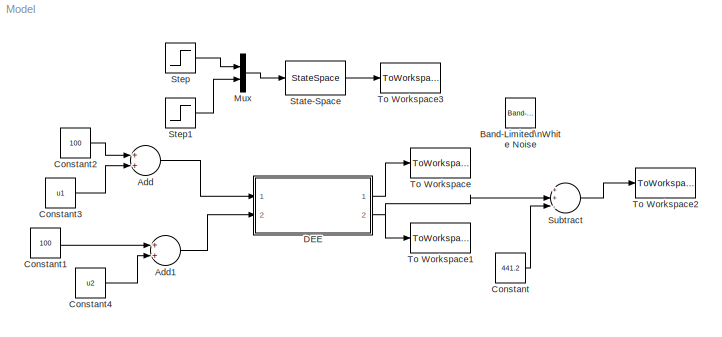
MODEL Model
KIND model
BLOCK [Sum] Add
  InputSameDT = off
  OutDataTypeStr = Inherit: Inherit via internal rule
  Ports = [2, 1]
  SID = 32
  SaturateOnIntegerOverflow = off
BLOCK [Sum] Add1
  InputSameDT = off
  OutDataTypeStr = Inherit: Inherit via internal rule
  Ports = [2, 1]
  SID = 33
  SaturateOnIntegerOverflow = off
BLOCK [Reference] Band-Limited\nWhite Noise  REF=simulink/Sources/Band-Limited\nWhite Noise
  Cov = [0.1]
  Ports = [0, 1]
  SID = 42
  SourceBlock = simulink/Sources/Band-Limited\nWhite Noise
  SourceType = Band-Limited White Noise.
  Ts = 0.1
  VectorParams1D = on
  seed = [23341]
BLOCK [Constant] Constant
  SID = 37
  Value = 441.2
BLOCK [Constant] Constant1
  SID = 38
  Value = 100
BLOCK [Constant] Constant2
  SID = 39
  Value = 100
BLOCK [Constant] Constant3
  SID = 40
  Value = u1
BLOCK [Constant] Constant4
  SID = 41
  Value = u2
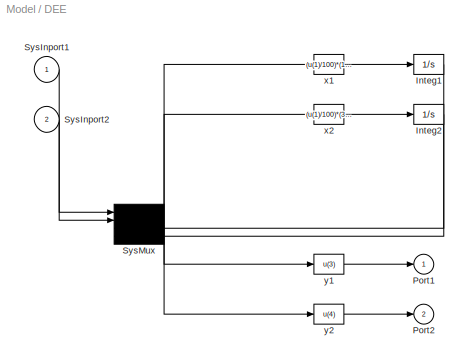
BLOCK [SubSystem] DEE
  OpenFcn = diffeqed
  Ports = [2, 2]
  RequestExecContextInheritance = off
  SID = 6
BLOCK [Integrator] DEE/Integ1
  InitialCondition = x01
  Ports = [1, 1]
  SID = 11
BLOCK [Integrator] DEE/Integ2
  InitialCondition = x02
  Ports = [1, 1]
  SID = 13
BLOCK [Outport] DEE/Port1
  IconDisplay = Port number
  SID = 15
BLOCK [Outport] DEE/Port2
  IconDisplay = Port number
  Port = 2
  SID = 24
BLOCK [Inport] DEE/SysInport1
  IconDisplay = Port number
  SID = 8
BLOCK [Inport] DEE/SysInport2
  IconDisplay = Port number
  Port = 2
  SID = 9
BLOCK [Mux] DEE/SysMux
  Ports = [4, 1]
  SID = 7
BLOCK [Fcn] DEE/x1
  Expr = (u(1)/100)*(1-u(3))-(7.2*10^10)*u(3)*exp(-(10^4)/u(4))
  SID = 10
BLOCK [Fcn] DEE/x2
  Expr = (u(1)/100)*(350-u(4))-((-(2*10^5)/(10^3))*(7.2*10^10)*u(3)*exp(-(10^4)/u(4)))+(((10^3)*1)/((10^3)*100))*(u(2))*(1-exp(-(7*10^5)/(u(2)*(10^3)*1)))*(350-u(4))
  SID = 12
BLOCK [Fcn] DEE/y1
  Expr = u(3)
  SID = 14
BLOCK [Fcn] DEE/y2
  Expr = u(4)
  SID = 23
BLOCK [Mux] Mux
  DisplayOption = bar
  Inputs = 2
  Ports = [2, 1]
  SID = 5
BLOCK [StateSpace] State-Space
  A = [-11.3 0; 2064.8 7.4]
  B = [0.0091 0; -0.912 -0.9053]
  C = [0 1]
  D = [0 0]
  Ports = [1, 1]
  SID = 1
  X0 = 0
BLOCK [Step] Step
  After = u1
  SID = 2
  SampleTime = 0
  Time = 0
BLOCK [Step] Step1
  After = u2
  SID = 4
  SampleTime = 0
  Time = 0
BLOCK [Sum] Subtract
  InputSameDT = off
  Inputs = ++-
  OutDataTypeStr = Inherit: Inherit via internal rule
  Ports = [3, 1]
  SID = 35
  SaturateOnIntegerOverflow = off
BLOCK [ToWorkspace] To Workspace
  FixptAsFi = on
  MaxDataPoints = inf
  Ports = [1]
  SID = 25
  SampleTime = -1
  Save2DSignal = 3-D array (concatenate along third dimension)
  VariableName = x1
BLOCK [ToWorkspace] To Workspace1
  FixptAsFi = on
  MaxDataPoints = inf
  Ports = [1]
  SID = 26
  SampleTime = -1
  Save2DSignal = 3-D array (concatenate along third dimension)
  VariableName = x2
BLOCK [ToWorkspace] To Workspace2
  FixptAsFi = on
  MaxDataPoints = inf
  Ports = [1]
  SID = 29
  SampleTime = -1
  Save2DSignal = 3-D array (concatenate along third dimension)
  VariableName = y
BLOCK [ToWorkspace] To Workspace3
  FixptAsFi = on
  MaxDataPoints = inf
  Ports = [1]
  SID = 36
  SampleTime = -1
  Save2DSignal = 3-D array (concatenate along third dimension)
  VariableName = yl
LINE Add1:1 -> DEE:2
LINE Add:1 -> DEE:1
LINE Constant1:1 -> Add1:1
LINE Constant2:1 -> Add:1
LINE Constant3:1 -> Add:2
LINE Constant4:1 -> Add1:2
LINE Constant:1 -> Subtract:3
LINE DEE/Integ1:1 -> DEE/SysMux:3
LINE DEE/Integ2:1 -> DEE/SysMux:4
LINE DEE/SysInport1:1 -> DEE/SysMux:1
LINE DEE/SysInport2:1 -> DEE/SysMux:2
NET DEE/SysMux:1 -> DEE/x1:1, DEE/x2:1, DEE/y1:1, DEE/y2:1
LINE DEE/x1:1 -> DEE/Integ1:1
LINE DEE/x2:1 -> DEE/Integ2:1
LINE DEE/y1:1 -> DEE/Port1:1
LINE DEE/y2:1 -> DEE/Port2:1
LINE DEE:1 -> To Workspace:1
NET DEE:2 -> Subtract:2, To Workspace1:1
LINE Mux:1 -> State-Space:1
LINE State-Space:1 -> To Workspace3:1
LINE Step1:1 -> Mux:2
LINE Step:1 -> Mux:1
LINE Subtract:1 -> To Workspace2:1
note: NET lines group one-source signal fan-out (src -> all destinations, sorted); 1:1 wires keep LINE
